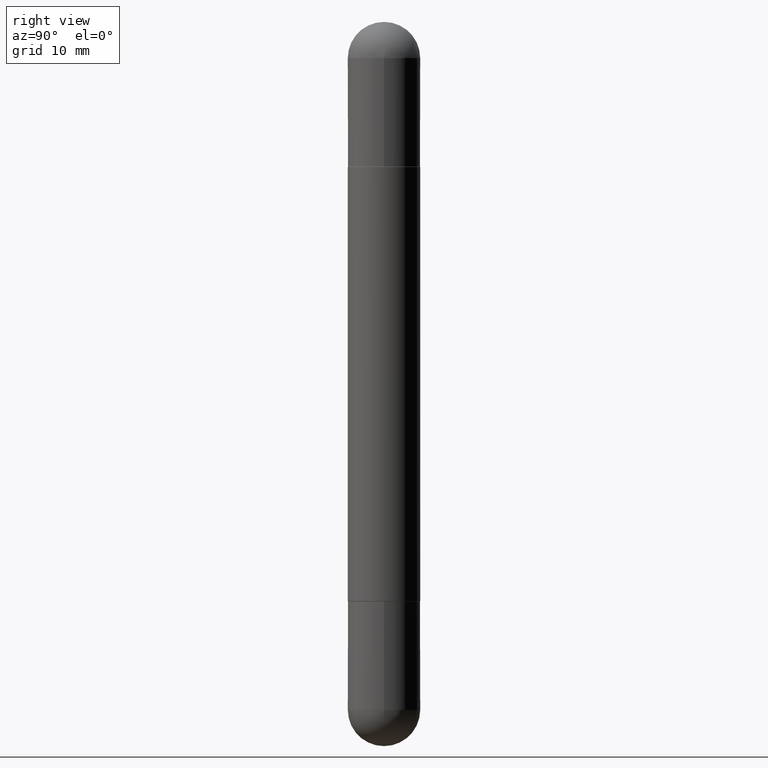
[diagram: clean part render]
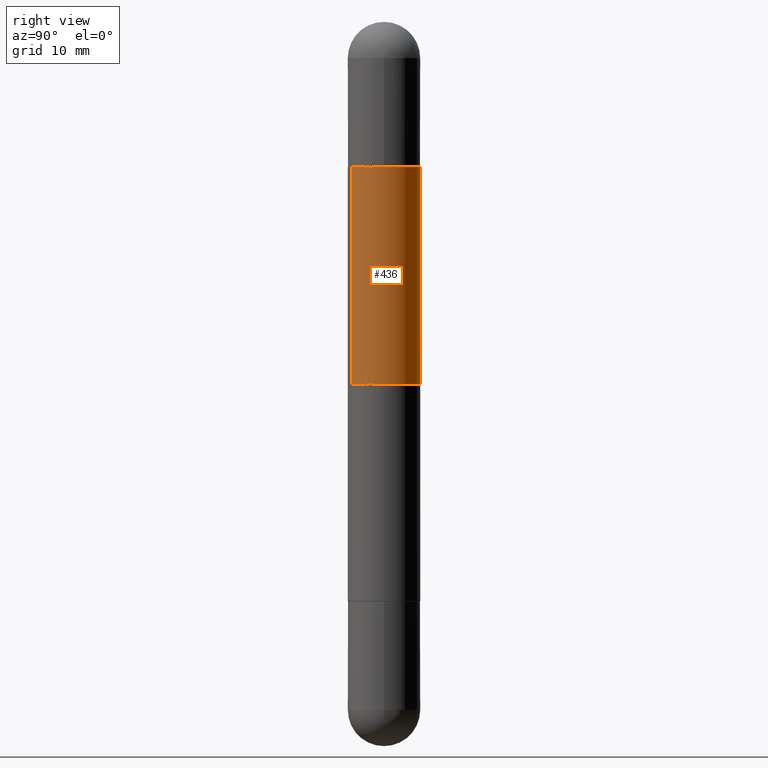
[diagram: same view with one face highlighted and labeled with its STEP entity id]
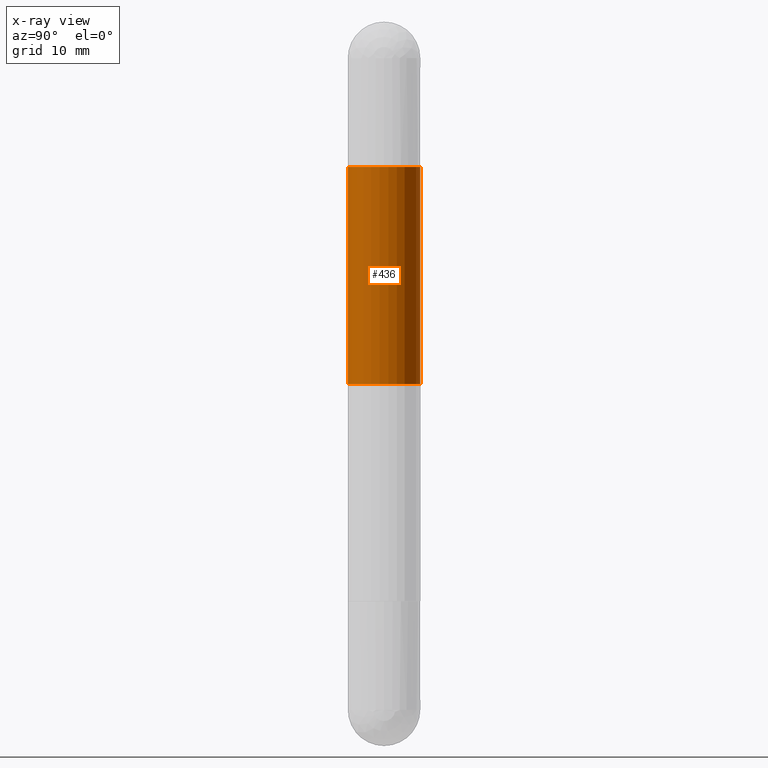
[diagram: x-ray of the same camera — body ghosted, the highlighted face saturated]
A machine part, right view. The second image highlights one B-rep face of the part: STEP entity #436.
The next image is the same camera in x-ray: the body ghosted, the highlighted face saturated — about 0% of this face is hidden behind the body in this view.
In plain terms, the highlighted cylindrical surface (edge-blend (fillet) strip) has radius 3.175 mm, axis along (-0, 0, -1).
Its self-contained STEP definition (entity closure, byte-faithful):
#21 = VECTOR ( 'NONE', #397, 39.37007874015748143 ) ;
#24 = AXIS2_PLACEMENT_3D ( 'NONE', #59, #565, #376 ) ;
#25 = EDGE_CURVE ( 'NONE', #196, #212, #405, .T. ) ;
#59 = CARTESIAN_POINT ( 'NONE',  ( 0.000000000000000000, 0.000000000000000000, -2.500000000000000444 ) ) ;
#83 = CARTESIAN_POINT ( 'NONE',  ( -8.728703347107364016E-16, -0.1250000000000072720, -0.5010000000000014442 ) ) ;
#143 = LINE ( 'NONE', #583, #21 ) ;
#166 = CARTESIAN_POINT ( 'NONE',  ( -8.728703347107444874E-16, -0.1250000000000044964, -1.250000000000000222 ) ) ;
#183 = EDGE_CURVE ( 'NONE', #212, #272, #143, .T. ) ;
#196 = VERTEX_POINT ( 'NONE', #83 ) ;
#199 = DIRECTION ( 'NONE',  ( -1.000000000000000000, 0.000000000000000000, 0.000000000000000000 ) ) ;
#212 = VERTEX_POINT ( 'NONE', #649 ) ;
#231 = CARTESIAN_POINT ( 'NONE',  ( 8.575622497214909463E-16, 0.1249999999999957673, -1.250000000000000222 ) ) ;
#234 = AXIS2_PLACEMENT_3D ( 'NONE', #384, #765, #199 ) ;
#258 = ORIENTED_EDGE ( 'NONE', *, *, #183, .F. ) ;
#272 = VERTEX_POINT ( 'NONE', #231 ) ;
#309 = ORIENTED_EDGE ( 'NONE', *, *, #611, .F. ) ;
#350 = CARTESIAN_POINT ( 'NONE',  ( -8.728703347107842263E-16, -0.1250000000000001388, -2.500000000000001332 ) ) ;
#376 = DIRECTION ( 'NONE',  ( -6.982962677686265922E-15, -1.000000000000000000, -4.370956789862816416E-15 ) ) ;
#381 = EDGE_LOOP ( 'NONE', ( #258, #643, #664, #309 ) ) ;
#384 = CARTESIAN_POINT ( 'NONE',  ( 3.056226326770015212E-29, -4.365224771391552501E-15, -1.250000000000000222 ) ) ;
#397 = DIRECTION ( 'NONE',  ( -2.444981061416011497E-29, 3.492179817113241133E-15, -1.000000000000000000 ) ) ;
#405 = CIRCLE ( 'NONE', #669, 0.1250000000000002776 ) ;
#436 = ADVANCED_FACE ( 'NONE', ( #676 ), #810, .T. ) ;
#472 = VECTOR ( 'NONE', #535, 39.37007874015748143 ) ;
#507 = DIRECTION ( 'NONE',  ( 2.444981061416011497E-29, -3.492179817113241133E-15, 1.000000000000000000 ) ) ;
#535 = DIRECTION ( 'NONE',  ( -2.444981061416011497E-29, 3.492179817113241133E-15, -1.000000000000000000 ) ) ;
#565 = DIRECTION ( 'NONE',  ( -2.444981061416011497E-29, 3.492179817113241133E-15, -1.000000000000000000 ) ) ;
#583 = CARTESIAN_POINT ( 'NONE',  ( 8.575622497214423328E-16, 0.1250000000000001388, -2.500000000000000000 ) ) ;
#611 = EDGE_CURVE ( 'NONE', #272, #726, #616, .T. ) ;
#616 = CIRCLE ( 'NONE', #234, 0.1250000000000001388 ) ;
#625 = DIRECTION ( 'NONE',  ( -6.982962677686265922E-15, -1.000000000000000000, -3.278217592397108762E-15 ) ) ;
#643 = ORIENTED_EDGE ( 'NONE', *, *, #25, .F. ) ;
#649 = CARTESIAN_POINT ( 'NONE',  ( 8.575622497214919324E-16, 0.1249999999999932693, -0.5010000000000006670 ) ) ;
#661 = LINE ( 'NONE', #350, #472 ) ;
#664 = ORIENTED_EDGE ( 'NONE', *, *, #695, .T. ) ;
#669 = AXIS2_PLACEMENT_3D ( 'NONE', #745, #507, #625 ) ;
#676 = FACE_OUTER_BOUND ( 'NONE', #381, .T. ) ;
#695 = EDGE_CURVE ( 'NONE', #196, #726, #661, .T. ) ;
#726 = VERTEX_POINT ( 'NONE', #166 ) ;
#745 = CARTESIAN_POINT ( 'NONE',  ( 4.887517141770606261E-29, -6.980867454409367060E-15, -0.5010000000000010001 ) ) ;
#765 = DIRECTION ( 'NONE',  ( -0.000000000000000000, -0.000000000000000000, -1.000000000000000000 ) ) ;
#810 = CYLINDRICAL_SURFACE ( 'NONE', #24, 0.1250000000000001388 ) ;